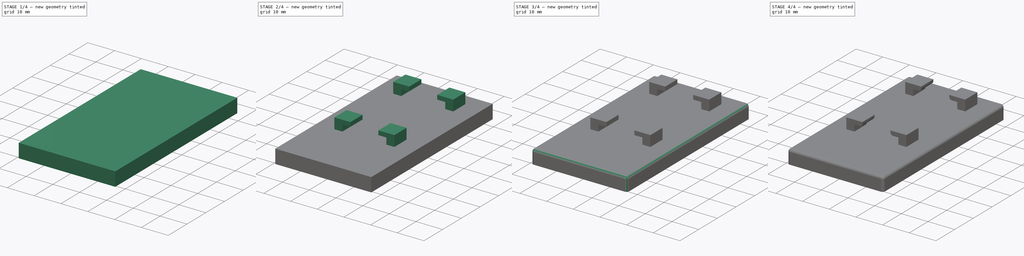
[diagram: build sequence overview — one tinted view per stage of 4, left to right]
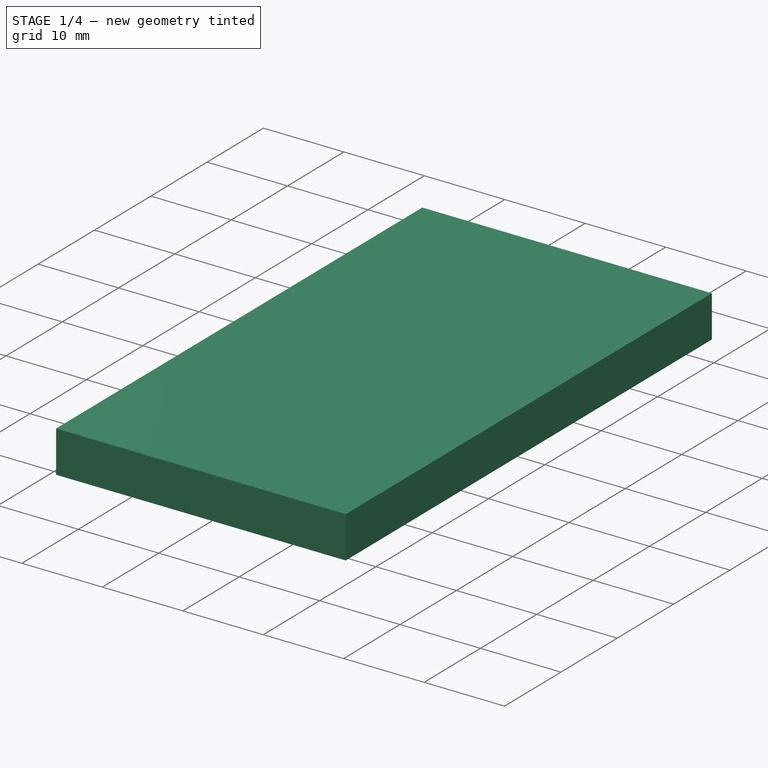
[diagram: stage 1 of 4 — iso view after this stage's code; geometry added in this stage tinted green]
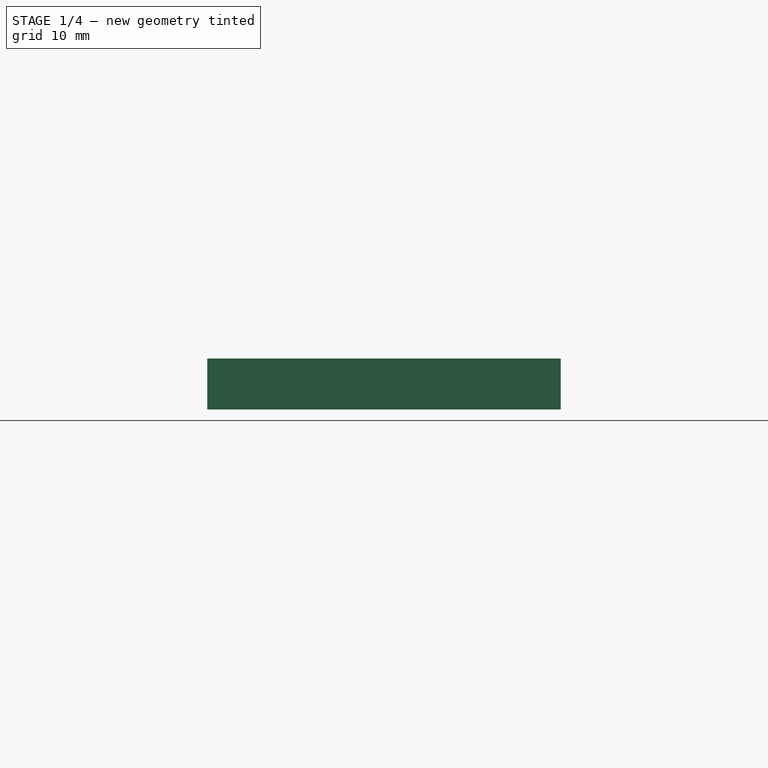
[diagram: stage 1 of 4 — front view after this stage's code; geometry added in this stage tinted green]
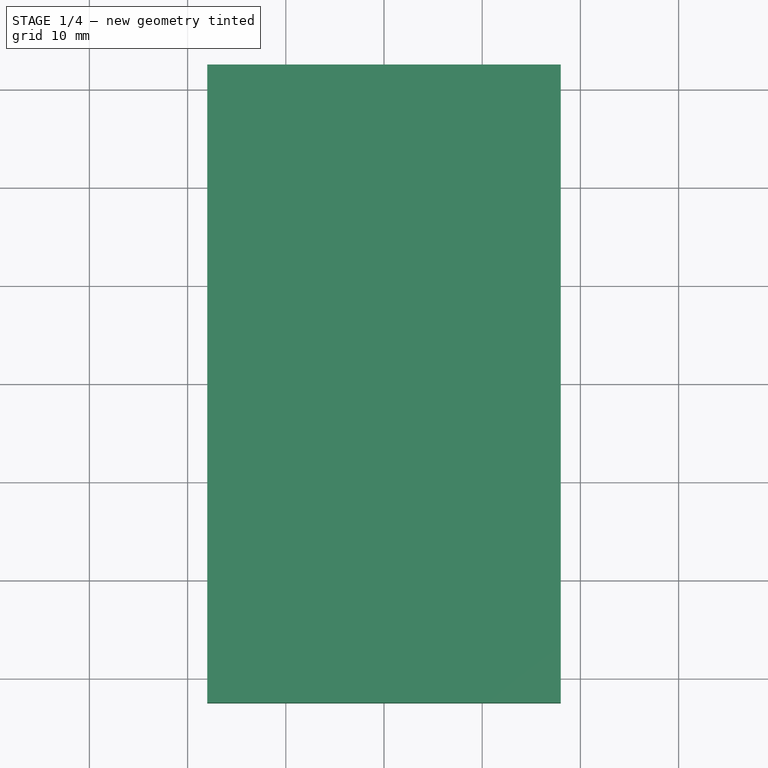
[diagram: stage 1 of 4 — top view after this stage's code; geometry added in this stage tinted green]
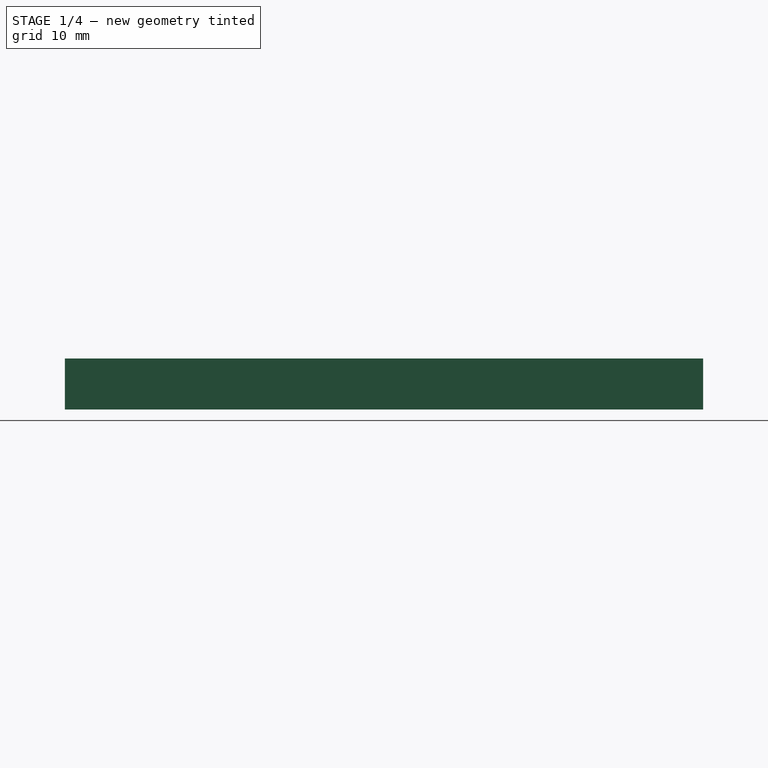
[diagram: stage 1 of 4 — right view after this stage's code; geometry added in this stage tinted green]
FCSTD DOCUMENT  (FreeCAD 0.21R33357 (Git))
Label: Carholder Mount Extension 3nd
License: All rights reserved
LicenseURL: http://en.wikipedia.org/wiki/All_rights_reserved
objects: Sketcher::SketchObject×6, PartDesign::Fillet×6, PartDesign::Pad×3, PartDesign::Pocket×3, PartDesign::Body×1
note: 31 computed .brp shape members not serialized (recipe doc carries the construction recipe); baked Part::Feature solids carry a one-line shape summary decoded from their .brp

FEATURE [Sketcher::SketchObject] Sketch
  FullyConstrained = true
  MapMode = 5
  Support = -> [XY_Plane]
  sketch-geometry (5):
    g0: LineSegment StartX=-18 StartY=32.5 StartZ=0 EndX=-18 EndY=-32.5 EndZ=0
    g1: LineSegment StartX=-18 StartY=-32.5 StartZ=0 EndX=18 EndY=-32.5 EndZ=0
    g2: LineSegment StartX=18 StartY=-32.5 StartZ=0 EndX=18 EndY=32.5 EndZ=0
    g3: LineSegment StartX=18 StartY=32.5 StartZ=0 EndX=-18 EndY=32.5 EndZ=0
    g4: GeomPoint X=0 Y=0 Z=0
  constraints (12):
    c: Coincident(g0,g1)
    c: Coincident(g1,g2)
    c: Coincident(g2,g3)
    c: Coincident(g3,g0)
    c: Horizontal(g1)
    c: Horizontal(g3)
    c: Vertical(g0)
    c: Vertical(g2)
    c: Symmetric(g1,g0,g4)
    c: Coincident(g4,g-1)
    c: DistanceX(g3,g3) = 36
    c: DistanceY(g2,g2) = 65
FEATURE [PartDesign::Pad] Pad
  Direction = (0,0,1)
  Length = 2.2
  Length2 = 10
  Profile = -> Sketch
  ReferenceAxis = -> Sketch [N_Axis]
  Type = 0
FEATURE [Sketcher::SketchObject] Sketch001
  ExternalGeometry = -> [Pad]
  FullyConstrained = false
  MapMode = 5
  Support = -> [XY_Plane]
  sketch-geometry (26):
    g0: LineSegment StartX=-11.25 StartY=-9 StartZ=0 EndX=-11.25 EndY=-22.5 EndZ=0
    g1: LineSegment StartX=-11.25 StartY=-22.5 StartZ=0 EndX=-7.25 EndY=-22.5 EndZ=0
    g2: LineSegment StartX=-7.25 StartY=-22.5 StartZ=0 EndX=-7.25 EndY=-15.5 EndZ=0
    g3: LineSegment StartX=-7.25 StartY=-15.5 StartZ=0 EndX=-8.9 EndY=-15.5 EndZ=0
    g4: LineSegment StartX=-8.9 StartY=-15.5 StartZ=0 EndX=-8.9 EndY=-9 EndZ=0
    g5: LineSegment StartX=-8.9 StartY=-9 StartZ=0 EndX=-11.25 EndY=-9 EndZ=0
    g6: LineSegment StartX=-11.25 StartY=21 StartZ=0 EndX=-11.25 EndY=7.5 EndZ=0
    g7: LineSegment StartX=-11.25 StartY=7.5 StartZ=0 EndX=-7.25 EndY=7.5 EndZ=0
    g8: LineSegment StartX=-7.25 StartY=7.5 StartZ=0 EndX=-7.25 EndY=14.5 EndZ=0
    g9: LineSegment StartX=-7.25 StartY=14.5 StartZ=0 EndX=-8.9 EndY=14.5 EndZ=0
    g10: LineSegment StartX=-8.9 StartY=14.5 StartZ=0 EndX=-8.9 EndY=21 EndZ=0
    g11: LineSegment StartX=-8.9 StartY=21 StartZ=0 EndX=-11.25 EndY=21 EndZ=0
    g12: LineSegment StartX=-11.25 StartY=-9 StartZ=0 EndX=-11.25 EndY=21 EndZ=0
    g13: LineSegment StartX=11.0988 StartY=-9 StartZ=0 EndX=11.0988 EndY=-22.5 EndZ=0
    g14: LineSegment StartX=11.0988 StartY=-22.5 StartZ=0 EndX=7.25 EndY=-22.5 EndZ=0
    g15: LineSegment StartX=7.25 StartY=-22.5 StartZ=0 EndX=7.25 EndY=-15.5 EndZ=0
    g16: LineSegment StartX=7.25 StartY=-15.5 StartZ=0 EndX=8.97775 EndY=-15.5 EndZ=0
    g17: LineSegment StartX=8.97775 StartY=-15.5 StartZ=0 EndX=8.97775 EndY=-9 EndZ=0
    g18: LineSegment StartX=8.97775 StartY=-9 StartZ=0 EndX=11.0988 EndY=-9 EndZ=0
    g19: LineSegment StartX=11.0988 StartY=21 StartZ=0 EndX=11.0988 EndY=7.5 EndZ=0
    g20: LineSegment StartX=11.0988 StartY=7.5 StartZ=0 EndX=7.25 EndY=7.5 EndZ=0
    g21: LineSegment StartX=7.25 StartY=7.5 StartZ=0 EndX=7.25 EndY=14.5 EndZ=0
    g22: LineSegment StartX=7.25 StartY=14.5 StartZ=0 EndX=8.90382 EndY=14.5 EndZ=0
    g23: LineSegment StartX=8.90382 StartY=14.5 StartZ=0 EndX=8.90382 EndY=21 EndZ=0
    g24: LineSegment StartX=8.90382 StartY=21 StartZ=0 EndX=11.0988 EndY=21 EndZ=0
    g25: LineSegment StartX=11.0988 StartY=-9 StartZ=0 EndX=11.0988 EndY=21 EndZ=0
  constraints (71):
    c: Vertical(g0)
    c: Coincident(g0,g1)
    c: Horizontal(g1)
    c: Coincident(g1,g2)
    c: Vertical(g2)
    c: Coincident(g2,g3)
    c: Coincident(g3,g4)
    c: Coincident(g4,g5)
    c: Coincident(g5,g0)
    c: Horizontal(g5)
    c: Parallel(g0,g4)
    c: Parallel(g5,g3)
    c: DistanceY(g2,g2) = 7
    c: DistanceY(g4,g4) = 6.5
    c: DistanceX(g5,g5) = 2.35
    c: DistanceX(g1,g1) = 4
    c: DistanceY(g-5,g0) = 10
    c: DistanceX(g-5,g0) = 6.75
    c: Vertical(g6)
    c: Coincident(g6,g7)
    c: Horizontal(g7)
    c: Coincident(g7,g8)
    c: Vertical(g8)
    c: Coincident(g8,g9)
    c: Coincident(g9,g10)
    c: Coincident(g10,g11)
    c: Coincident(g11,g6)
    c: Horizontal(g11)
    c: Parallel(g6,g10)
    c: Parallel(g11,g9)
    c: DistanceY(g8,g8) = 7
    c: DistanceY(g10,g10) = 6.5
    c: DistanceX(g11,g11) = 2.35
    c: DistanceX(g7,g7) = 4
    c: Coincident(g0,g12)
    c: Coincident(g6,g12)
    c: Distance(g12) = 30
    c: Angle(g12) = 1.5708
    c: Vertical(g13)
    c: Coincident(g13,g14)
    c: Horizontal(g14)
    c: Coincident(g14,g15)
    c: Vertical(g15)
    c: Coincident(g15,g16)
    c: Coincident(g16,g17)
    c: Coincident(g17,g18)
    c: Coincident(g18,g13)
    c: Horizontal(g18)
    c: Parallel(g13,g17)
    c: Parallel(g18,g16)
    c: Vertical(g19)
    c: Coincident(g19,g20)
    c: Horizontal(g20)
    c: Coincident(g20,g21)
    c: Vertical(g21)
    c: Coincident(g21,g22)
    c: Coincident(g22,g23)
    c: Coincident(g23,g24)
    c: Coincident(g24,g19)
    c: Horizontal(g24)
    c: Parallel(g19,g23)
    c: Parallel(g24,g22)
    c: Coincident(g13,g25)
    c: Coincident(g19,g25)
    c: Distance(g25) = 30
    c: Angle(g25) = 1.5708
    c: DistanceY(g-5,g13) = 10
    c: DistanceY(g13,g13) = 13.5
    c: DistanceY(g15,g15) = 7
    c: DistanceY(g19,g19) = 13.5
    c: DistanceY(g21,g21) = 7
FEATURE [PartDesign::Pocket] Pocket
  BaseFeature = -> Pad
  Direction = (0,0,-1)
  Length = 5
  Length2 = 5
  Profile = -> Sketch001
  ReferenceAxis = -> Sketch001 [N_Axis]
  Reversed = true
  Type = 1
FEATURE [Sketcher::SketchObject] Sketch002
  FullyConstrained = true
  MapMode = 5
  Placement = pos=(0,0,2.2) rot=(0,0,1;0rad)
  Support = -> [Pocket]
  sketch-geometry (5):
    g0: LineSegment StartX=-18 StartY=32.5 StartZ=0 EndX=-18 EndY=-32.5 EndZ=0
    g1: LineSegment StartX=-18 StartY=-32.5 StartZ=0 EndX=18 EndY=-32.5 EndZ=0
    g2: LineSegment StartX=18 StartY=-32.5 StartZ=0 EndX=18 EndY=32.5 EndZ=0
    g3: LineSegment StartX=18 StartY=32.5 StartZ=0 EndX=-18 EndY=32.5 EndZ=0
    g4: GeomPoint X=0 Y=0 Z=0
  constraints (12):
    c: Coincident(g0,g1)
    c: Coincident(g1,g2)
    c: Coincident(g2,g3)
    c: Coincident(g3,g0)
    c: Horizontal(g1)
    c: Horizontal(g3)
    c: Vertical(g0)
    c: Vertical(g2)
    c: Symmetric(g1,g0,g4)
    c: Coincident(g4,g-1)
    c: DistanceY(g2,g2) = 65
    c: DistanceX(g3,g3) = 36
FEATURE [PartDesign::Pad] Pad001
  BaseFeature = -> Pocket
  Direction = (0,0,1)
  Length = 3
  Length2 = 10
  Profile = -> Sketch002
  ReferenceAxis = -> Sketch002 [N_Axis]
  Type = 0
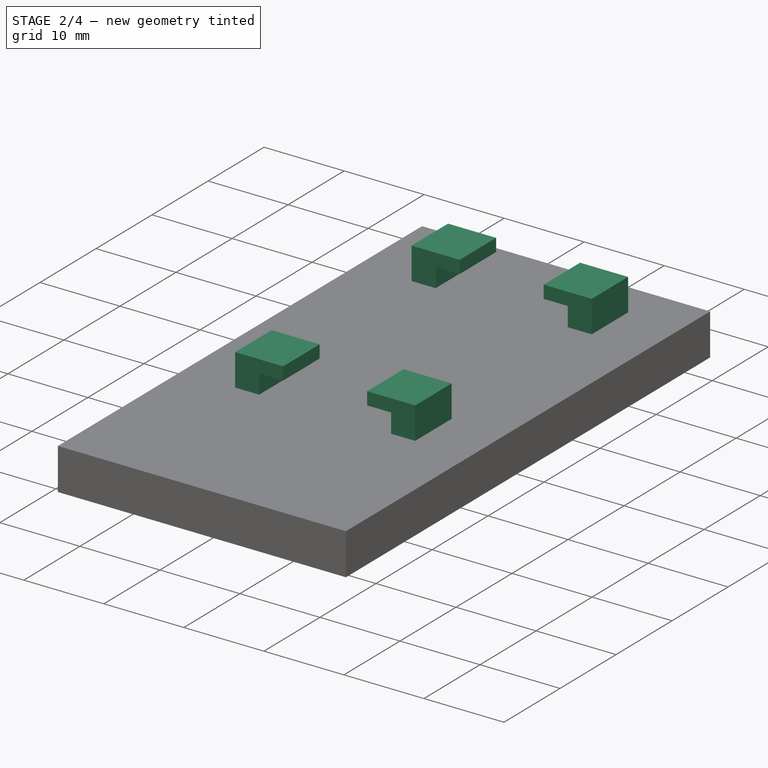
[diagram: stage 2 of 4 — iso view after this stage's code; geometry added in this stage tinted green]
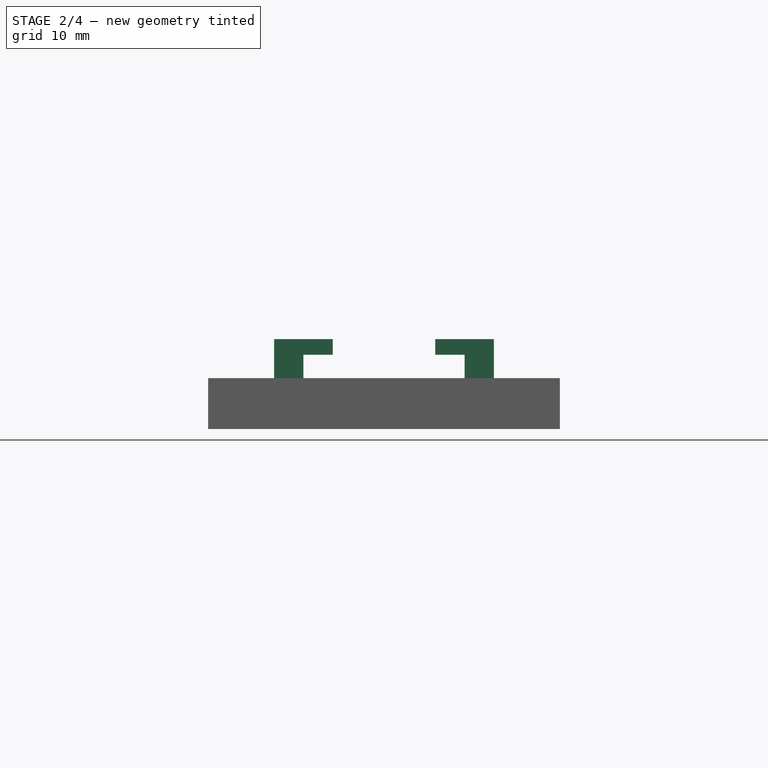
[diagram: stage 2 of 4 — front view after this stage's code; geometry added in this stage tinted green]
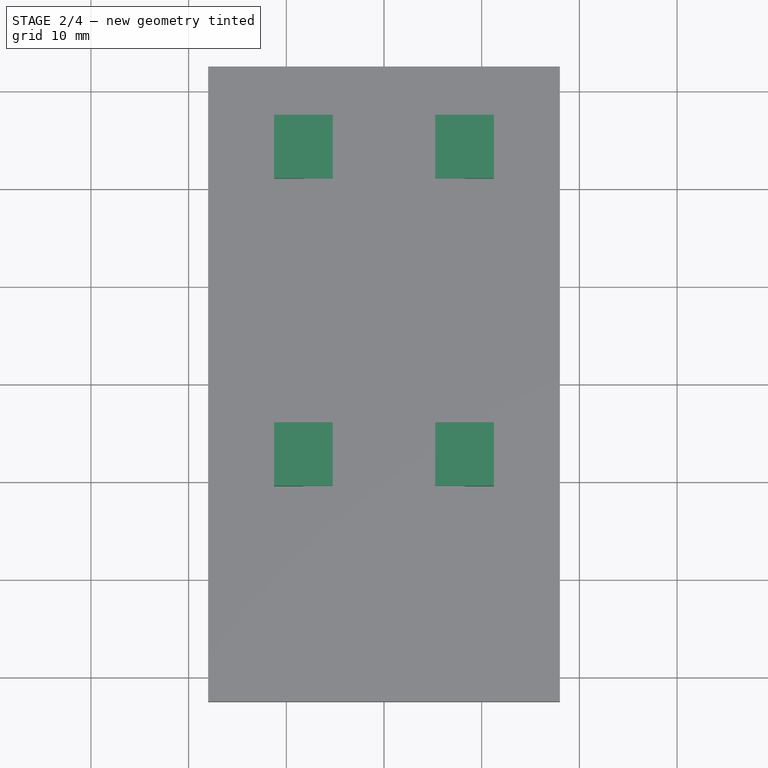
[diagram: stage 2 of 4 — top view after this stage's code; geometry added in this stage tinted green]
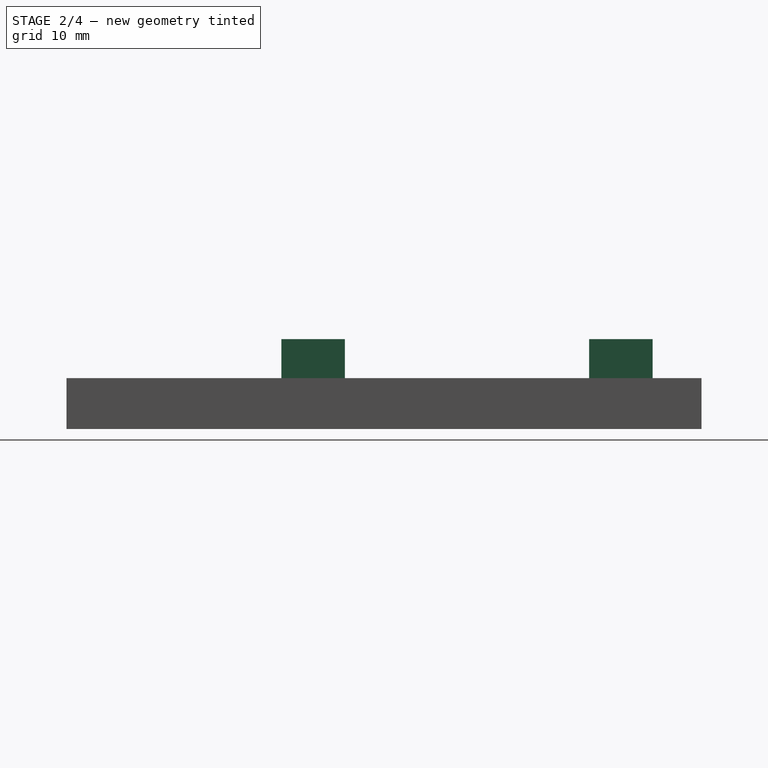
[diagram: stage 2 of 4 — right view after this stage's code; geometry added in this stage tinted green]
FEATURE [Sketcher::SketchObject] Sketch003
  ExternalGeometry = -> [Pad001]
  FullyConstrained = true
  MapMode = 5
  Support = -> [XY_Plane]
  sketch-geometry (16):
    g0: LineSegment StartX=-11.25 StartY=21 StartZ=0 EndX=-7.25 EndY=21 EndZ=0
    g1: LineSegment StartX=-7.25 StartY=21 StartZ=0 EndX=-7.25 EndY=7.5 EndZ=0
    g2: LineSegment StartX=-7.25 StartY=7.5 StartZ=0 EndX=-11.25 EndY=7.5 EndZ=0
    g3: LineSegment StartX=-11.25 StartY=7.5 StartZ=0 EndX=-11.25 EndY=21 EndZ=0
    g4: LineSegment StartX=11.0988 StartY=21 StartZ=0 EndX=7.25 EndY=21 EndZ=0
    g5: LineSegment StartX=7.25 StartY=21 StartZ=0 EndX=7.25 EndY=7.5 EndZ=0
    g6: LineSegment StartX=7.25 StartY=7.5 StartZ=0 EndX=11.0988 EndY=7.5 EndZ=0
    g7: LineSegment StartX=11.0988 StartY=7.5 StartZ=0 EndX=11.0988 EndY=21 EndZ=0
    g8: LineSegment StartX=11.0988 StartY=-9 StartZ=0 EndX=7.25 EndY=-9 EndZ=0
    g9: LineSegment StartX=7.25 StartY=-9 StartZ=0 EndX=7.25 EndY=-22.5 EndZ=0
    g10: LineSegment StartX=7.25 StartY=-22.5 StartZ=0 EndX=11.0988 EndY=-22.5 EndZ=0
    g11: LineSegment StartX=11.0988 StartY=-22.5 StartZ=0 EndX=11.0988 EndY=-9 EndZ=0
    g12: LineSegment StartX=-11.25 StartY=-9 StartZ=0 EndX=-7.25 EndY=-9 EndZ=0
    g13: LineSegment StartX=-7.25 StartY=-9 StartZ=0 EndX=-7.25 EndY=-22.5 EndZ=0
    g14: LineSegment StartX=-7.25 StartY=-22.5 StartZ=0 EndX=-11.25 EndY=-22.5 EndZ=0
    g15: LineSegment StartX=-11.25 StartY=-22.5 StartZ=0 EndX=-11.25 EndY=-9 EndZ=0
  constraints (40):
    c: Coincident(g0,g1)
    c: Coincident(g1,g2)
    c: Coincident(g2,g3)
    c: Coincident(g3,g0)
    c: Horizontal(g0)
    c: Horizontal(g2)
    c: Vertical(g1)
    c: Vertical(g3)
    c: Coincident(g0,g-9)
    c: Coincident(g1,g-11)
    c: Coincident(g4,g5)
    c: Coincident(g5,g6)
    c: Coincident(g6,g7)
    c: Coincident(g7,g4)
    c: Horizontal(g4)
    c: Horizontal(g6)
    c: Vertical(g5)
    c: Vertical(g7)
    c: Coincident(g4,g-5)
    c: Coincident(g5,g-12)
    c: Coincident(g8,g9)
    c: Coincident(g9,g10)
    c: Coincident(g10,g11)
    c: Coincident(g11,g8)
    c: Horizontal(g8)
    c: Horizontal(g10)
    c: Vertical(g9)
    c: Vertical(g11)
    c: Coincident(g8,g-14)
    c: Coincident(g9,g-16)
    c: Coincident(g12,g13)
    c: Coincident(g13,g14)
    c: Coincident(g14,g15)
    c: Coincident(g15,g12)
    c: Horizontal(g12)
    c: Horizontal(g14)
    c: Vertical(g13)
    c: Vertical(g15)
    c: Coincident(g12,g-19)
    c: Coincident(g13,g-20)
FEATURE [PartDesign::Pocket] Pocket001
  BaseFeature = -> Pad001
  Direction = (0,0,-1)
  Length = 4
  Length2 = -2
  Profile = -> Sketch003
  ReferenceAxis = -> Sketch003 [N_Axis]
  Reversed = true
  Type = 4
FEATURE [Sketcher::SketchObject] Sketch004
  ExternalGeometry = -> [Pocket001]
  FullyConstrained = true
  MapMode = 5
  Placement = pos=(0,0,5.2) rot=(0,0,1;0rad)
  Support = -> [Pocket001]
  sketch-geometry (16):
    g0: LineSegment StartX=-11.25 StartY=27.5 StartZ=0 EndX=-5.25 EndY=27.5 EndZ=0
    g1: LineSegment StartX=-5.25 StartY=27.5 StartZ=0 EndX=-5.25 EndY=21 EndZ=0
    g2: LineSegment StartX=-5.25 StartY=21 StartZ=0 EndX=-11.25 EndY=21 EndZ=0
    g3: LineSegment StartX=-11.25 StartY=21 StartZ=0 EndX=-11.25 EndY=27.5 EndZ=0
    g4: LineSegment StartX=5.25 StartY=21 StartZ=0 EndX=11.25 EndY=21 EndZ=0
    g5: LineSegment StartX=11.25 StartY=21 StartZ=0 EndX=11.25 EndY=27.5 EndZ=0
    g6: LineSegment StartX=11.25 StartY=27.5 StartZ=0 EndX=5.25 EndY=27.5 EndZ=0
    g7: LineSegment StartX=5.25 StartY=27.5 StartZ=0 EndX=5.25 EndY=21 EndZ=0
    g8: LineSegment StartX=-11.25 StartY=-4 StartZ=0 EndX=-5.25 EndY=-4 EndZ=0
    g9: LineSegment StartX=-5.25 StartY=-4 StartZ=0 EndX=-5.25 EndY=-10.5 EndZ=0
    g10: LineSegment StartX=-5.25 StartY=-10.5 StartZ=0 EndX=-11.25 EndY=-10.5 EndZ=0
    g11: LineSegment StartX=-11.25 StartY=-10.5 StartZ=0 EndX=-11.25 EndY=-4 EndZ=0
    g12: LineSegment StartX=5.25 StartY=-4 StartZ=0 EndX=11.25 EndY=-4 EndZ=0
    g13: LineSegment StartX=11.25 StartY=-4 StartZ=0 EndX=11.25 EndY=-10.5 EndZ=0
    g14: LineSegment StartX=11.25 StartY=-10.5 StartZ=0 EndX=5.25 EndY=-10.5 EndZ=0
    g15: LineSegment StartX=5.25 StartY=-10.5 StartZ=0 EndX=5.25 EndY=-4 EndZ=0
  constraints (48):
    c: Coincident(g0,g1)
    c: Coincident(g1,g2)
    c: Coincident(g2,g3)
    c: Coincident(g3,g0)
    c: Horizontal(g0)
    c: Horizontal(g2)
    c: Vertical(g1)
    c: Vertical(g3)
    c: Coincident(g4,g5)
    c: Coincident(g5,g6)
    c: Coincident(g6,g7)
    c: Coincident(g7,g4)
    c: Horizontal(g4)
    c: Horizontal(g6)
    c: Vertical(g5)
    c: Vertical(g7)
    c: Coincident(g8,g9)
    c: Coincident(g9,g10)
    c: Coincident(g10,g11)
    c: Coincident(g11,g8)
    c: Horizontal(g8)
    c: Horizontal(g10)
    c: Vertical(g9)
    c: Vertical(g11)
    c: Coincident(g12,g13)
    c: Coincident(g13,g14)
    c: Coincident(g14,g15)
    c: Coincident(g15,g12)
    c: Horizontal(g12)
    c: Horizontal(g14)
    c: Vertical(g13)
    c: Vertical(g15)
    c: DistanceX(g0,g0) = 6
    c: Equal(g0,g4)
    c: Equal(g4,g12)
    c: Equal(g12,g8)
    c: DistanceY(g3,g3) = 6.5
    c: Equal(g3,g7)
    c: Equal(g7,g15)
    c: Equal(g15,g11)
    c: DistanceX(g-5,g0) = 6.75
    c: DistanceX(g4,g-4) = 6.75
    c: DistanceY(g0,g-5) = 5
    c: DistanceX(g12,g-4) = 6.75
    c: DistanceX(g-5,g8) = 6.75
    c: DistanceY(g8,g2) = 25
    c: DistanceY(g-4,g5) = -5
    c: DistanceY(g12,g4) = 25
FEATURE [PartDesign::Pad] Pad002
  BaseFeature = -> Pocket001
  Direction = (0,0,1)
  Length = 4
  Length2 = 10
  Profile = -> Sketch004
  ReferenceAxis = -> Sketch004 [N_Axis]
  Type = 0
FEATURE [Sketcher::SketchObject] Sketch005
  ExternalGeometry = -> [Pad002]
  FullyConstrained = true
  MapMode = 5
  Placement = pos=(0,0,5.2) rot=(0,0,1;0rad)
  Support = -> [Pad002]
  sketch-geometry (4):
    g0: LineSegment StartX=-8.25 StartY=27.5 StartZ=0 EndX=8.25 EndY=27.5 EndZ=0
    g1: LineSegment StartX=8.25 StartY=27.5 StartZ=0 EndX=8.25 EndY=-10.5 EndZ=0
    g2: LineSegment StartX=8.25 StartY=-10.5 StartZ=0 EndX=-8.25 EndY=-10.5 EndZ=0
    g3: LineSegment StartX=-8.25 StartY=-10.5 StartZ=0 EndX=-8.25 EndY=27.5 EndZ=0
  constraints (12):
    c: Coincident(g0,g1)
    c: Coincident(g1,g2)
    c: Coincident(g2,g3)
    c: Coincident(g3,g0)
    c: Horizontal(g0)
    c: Horizontal(g2)
    c: Vertical(g1)
    c: Vertical(g3)
    c: DistanceY(g0,g-3) = 0
    c: DistanceY(g-6,g1) = 0
    c: DistanceX(g-4,g0) = 3
    c: DistanceX(g0,g-3) = 3
FEATURE [PartDesign::Pocket] Pocket002
  BaseFeature = -> Pad002
  Direction = (0,0,-1)
  Length = 2.4
  Length2 = 5
  Profile = -> Sketch005
  ReferenceAxis = -> Sketch005 [N_Axis]
  Reversed = true
  Type = 0
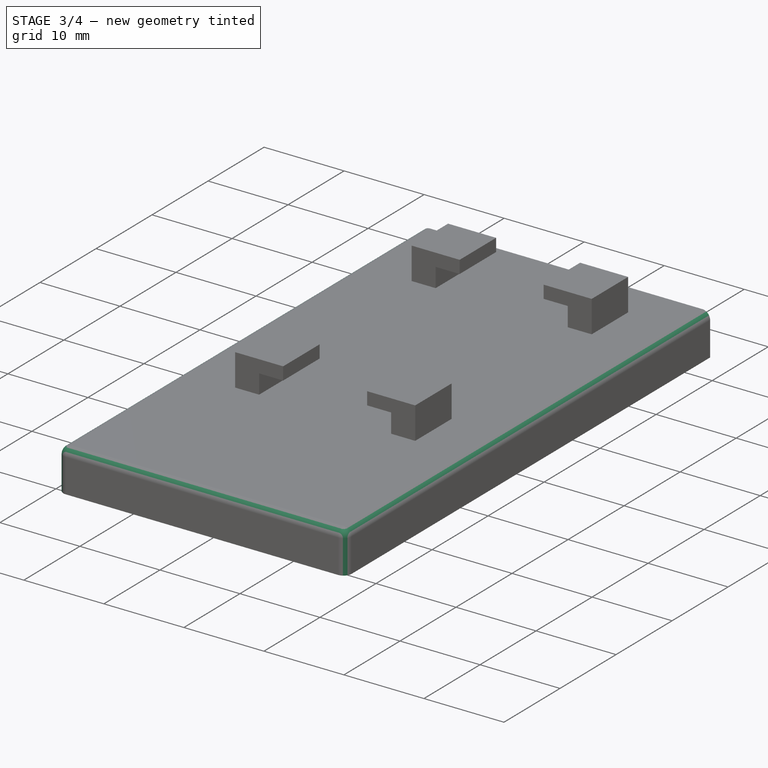
[diagram: stage 3 of 4 — iso view after this stage's code; geometry added in this stage tinted green]
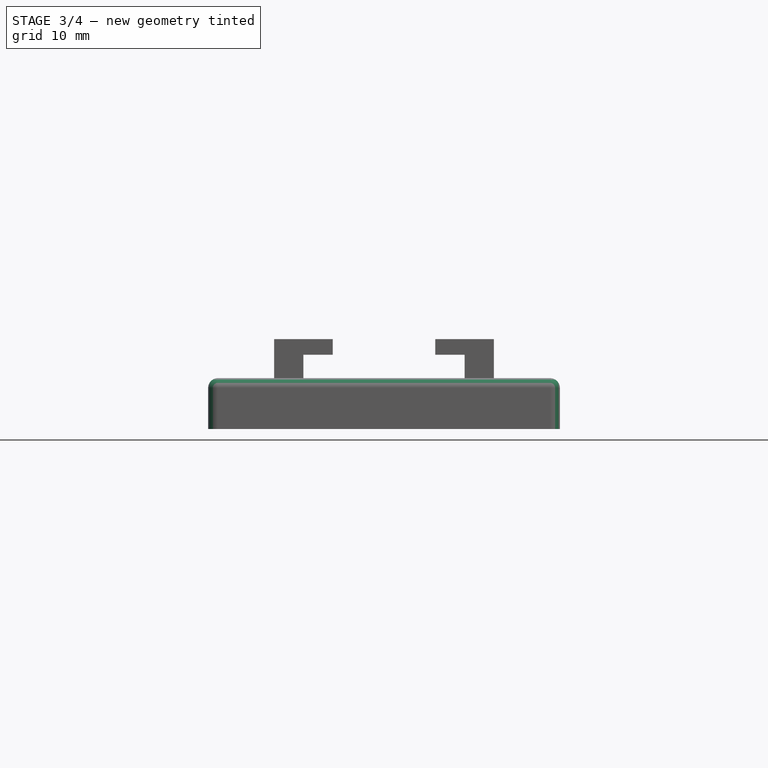
[diagram: stage 3 of 4 — front view after this stage's code; geometry added in this stage tinted green]
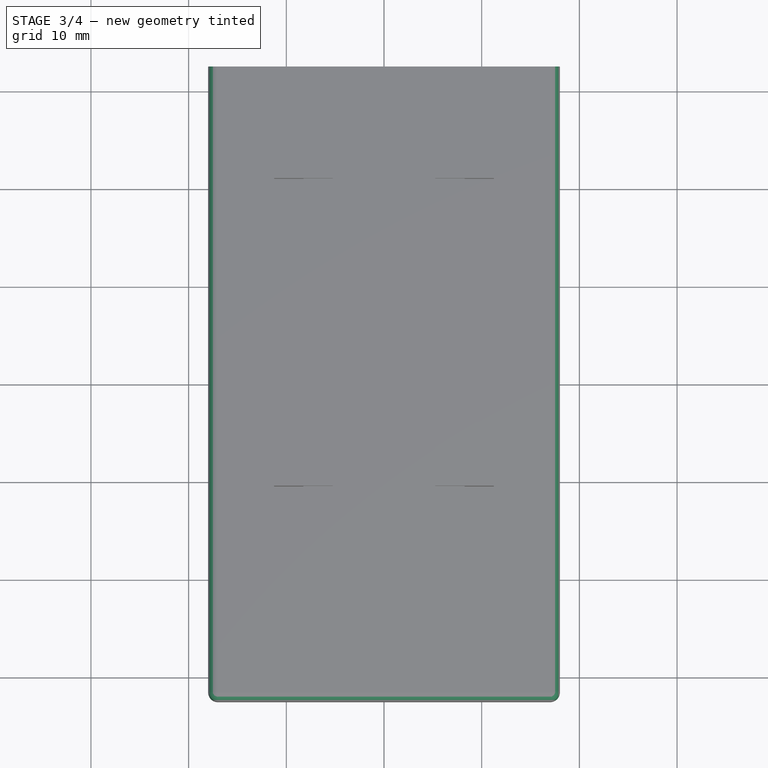
[diagram: stage 3 of 4 — top view after this stage's code; geometry added in this stage tinted green]
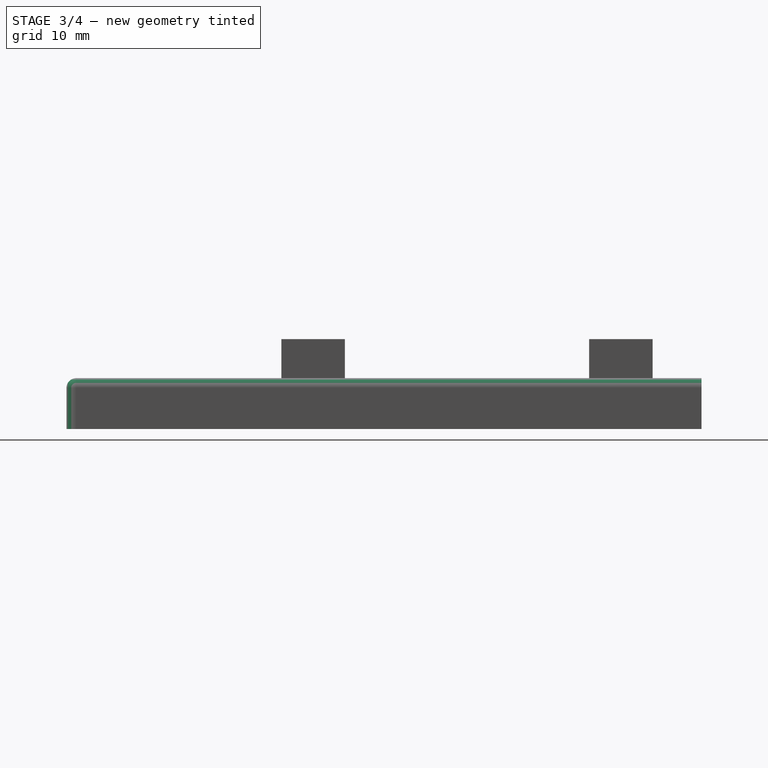
[diagram: stage 3 of 4 — right view after this stage's code; geometry added in this stage tinted green]
FEATURE [PartDesign::Fillet] Fillet
  Base = -> Pocket002 [Edge92]
  BaseFeature = -> Pocket002
  Radius = 1
  SupportTransform = false
  UseAllEdges = false
FEATURE [PartDesign::Fillet] Fillet001
  Base = -> Fillet [Edge15]
  BaseFeature = -> Fillet
  Radius = 1
  SupportTransform = false
  UseAllEdges = false
FEATURE [PartDesign::Fillet] Fillet002
  Base = -> Fillet001 [Edge18]
  BaseFeature = -> Fillet001
  Radius = 1
  SupportTransform = false
  UseAllEdges = false
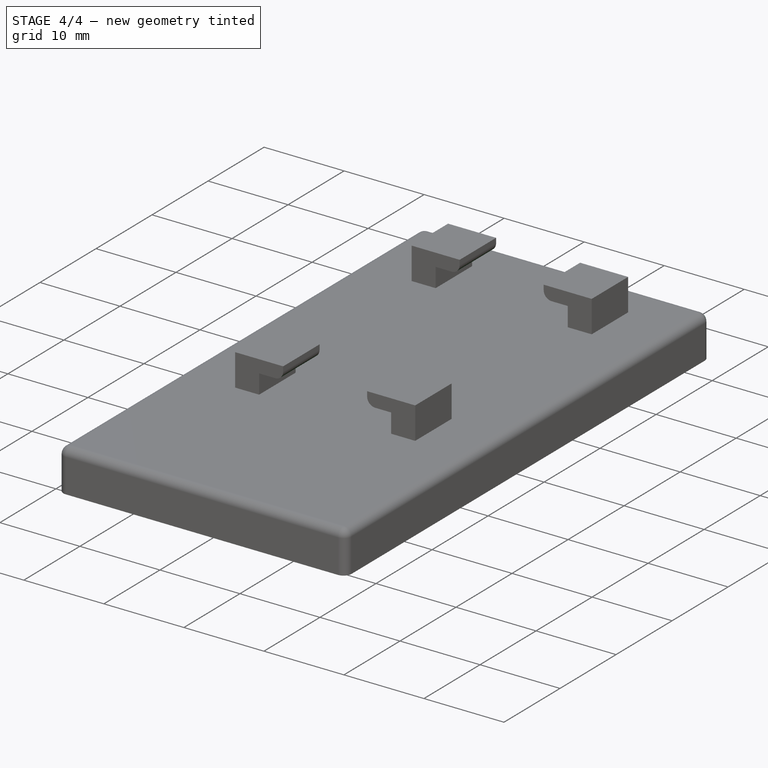
[diagram: stage 4 of 4 — iso view after this stage's code; geometry added in this stage tinted green]
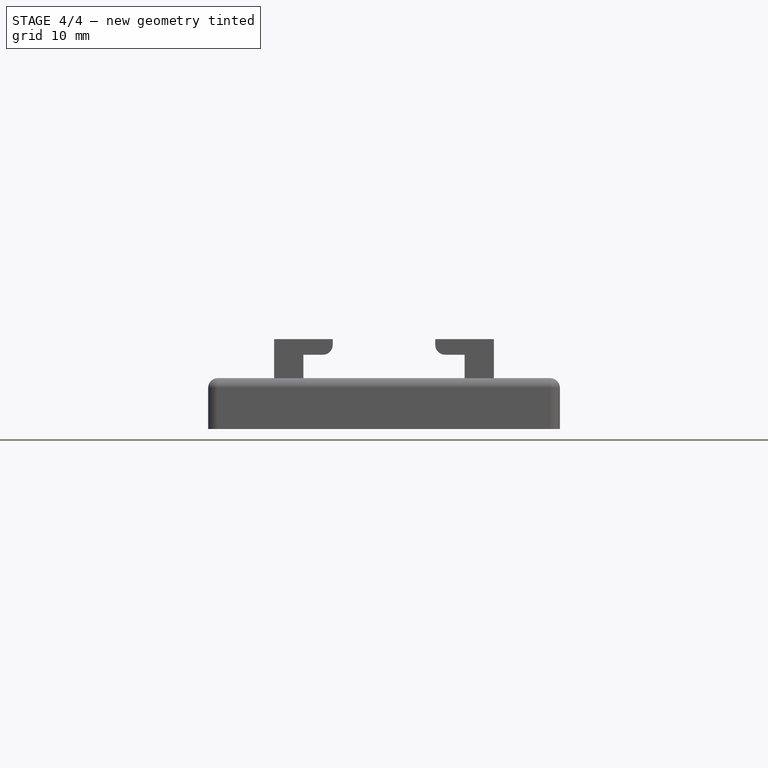
[diagram: stage 4 of 4 — front view after this stage's code; geometry added in this stage tinted green]
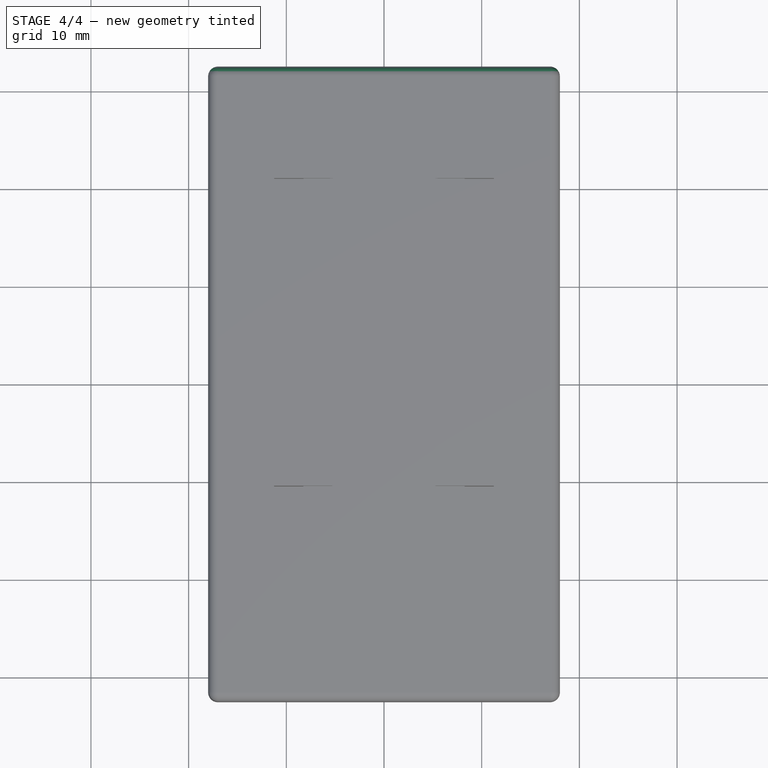
[diagram: stage 4 of 4 — top view after this stage's code; geometry added in this stage tinted green]
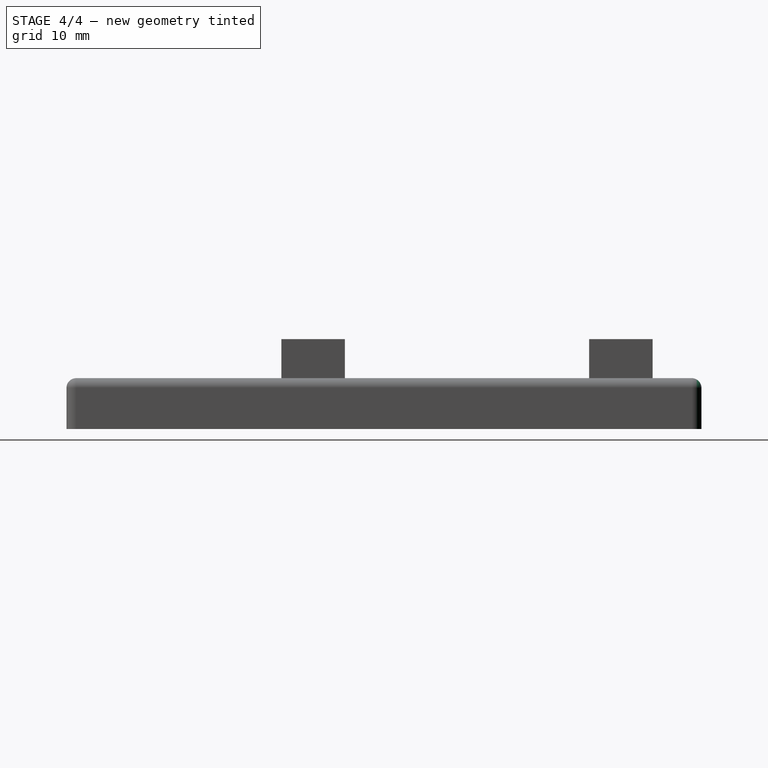
[diagram: stage 4 of 4 — right view after this stage's code; geometry added in this stage tinted green]
FEATURE [PartDesign::Fillet] Fillet003
  Base = -> Fillet002 [Edge1]
  BaseFeature = -> Fillet002
  Radius = 1
  SupportTransform = false
  UseAllEdges = false
FEATURE [PartDesign::Fillet] Fillet004
  Base = -> Fillet003 [Edge253,Edge256]
  BaseFeature = -> Fillet003
  Radius = 1
  SupportTransform = false
  UseAllEdges = false
FEATURE [PartDesign::Fillet] Fillet005
  Base = -> Fillet004 [Edge129,Edge121]
  BaseFeature = -> Fillet004
  Radius = 1
  SupportTransform = false
  UseAllEdges = false
FEATURE [PartDesign::Body] Body
  Group = -> [Sketch,Pad,Sketch001,Pocket,Sketch002,Pad001,Sketch003,Pocket001,Sketch004,Pad002,Sketch005,Pocket002,Fillet,Fillet001,Fillet002,Fillet003,Fillet004,Fillet005]
  Origin = -> Origin
  Tip = -> Fillet005
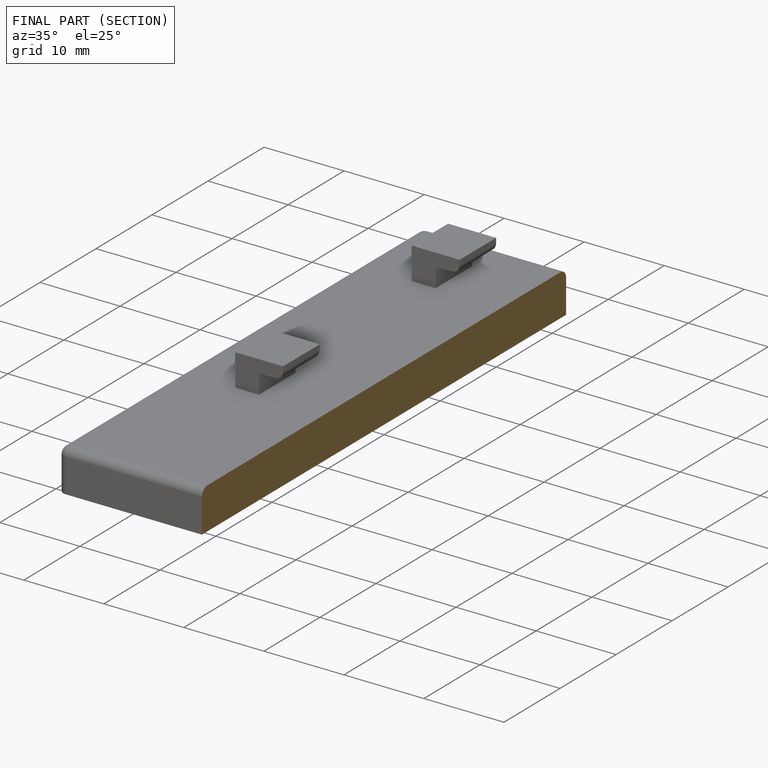
[diagram: finished part — half-section view (interior)]
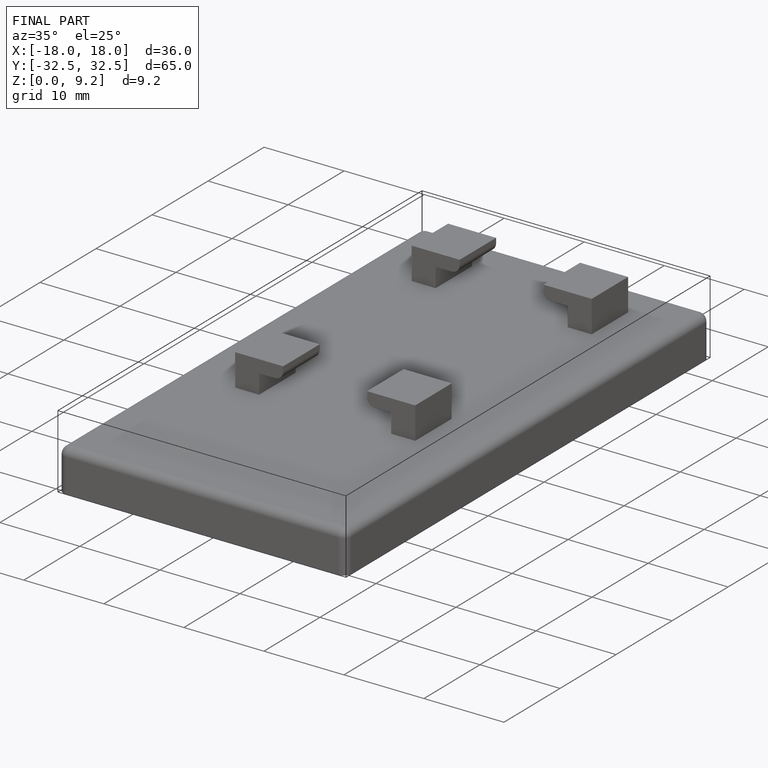
[diagram: finished part — iso view with bounding-box wireframe]
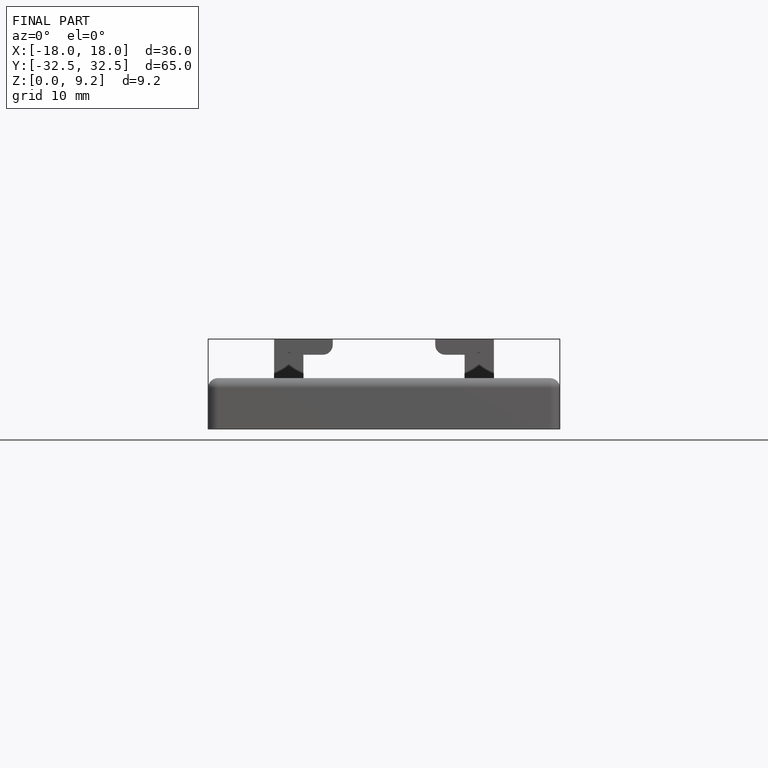
[diagram: finished part — front view with bounding-box wireframe]
